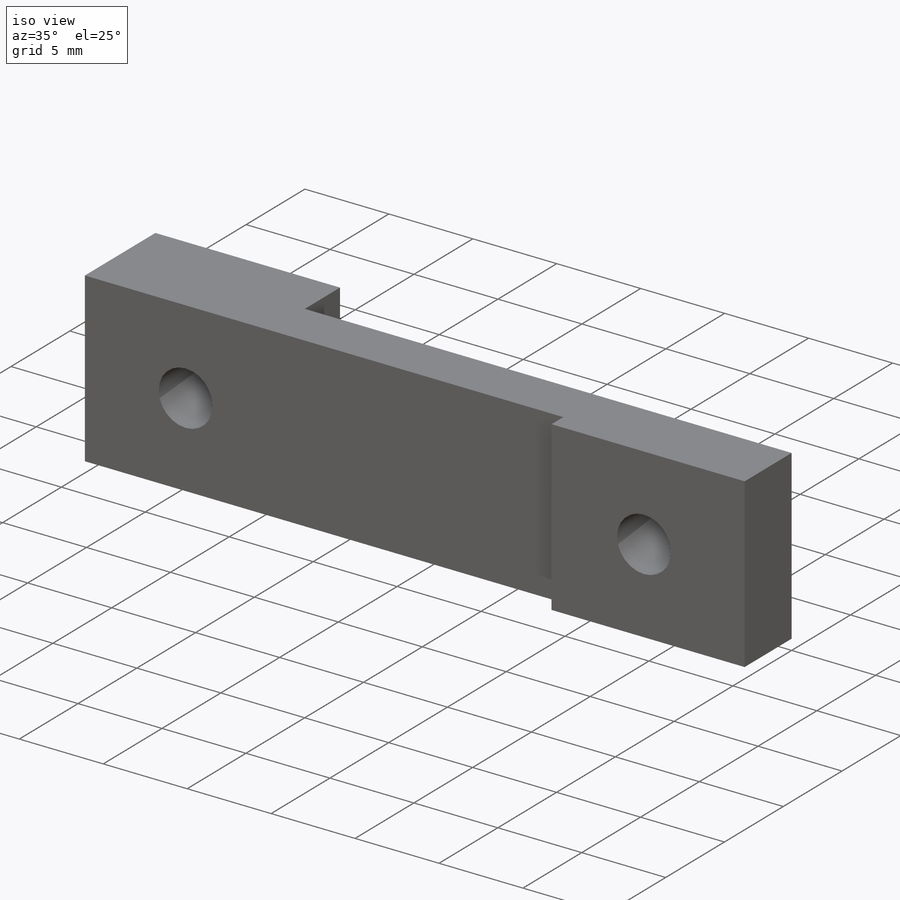
[diagram: iso view]
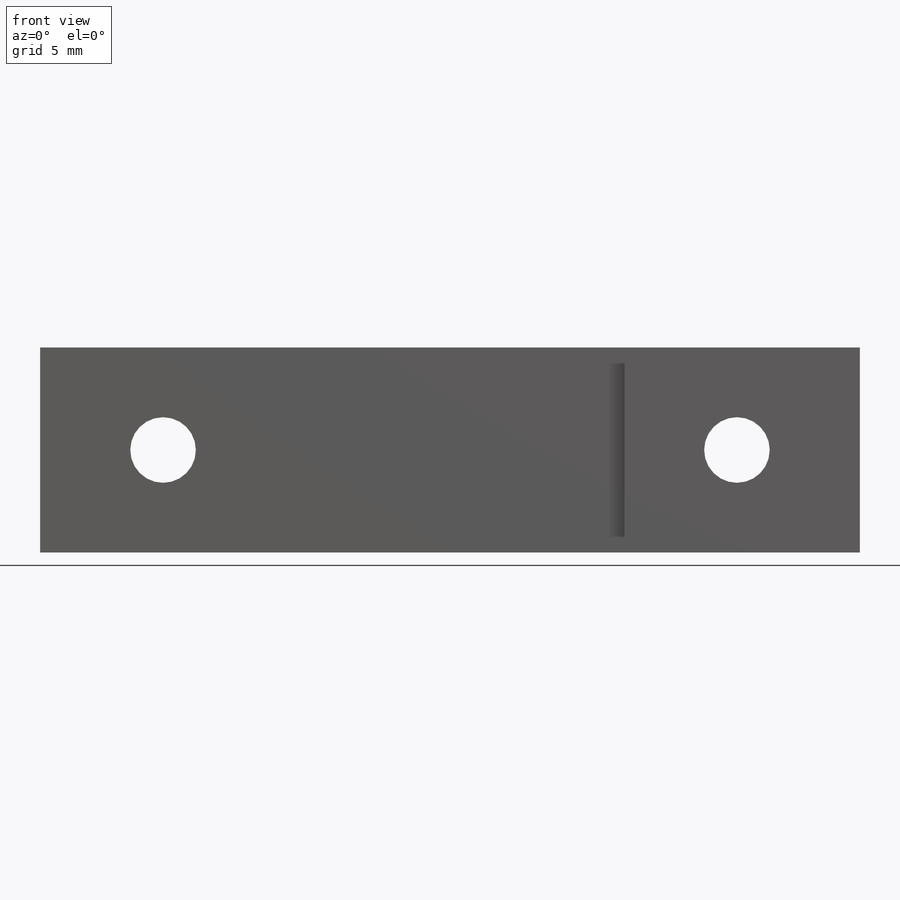
[diagram: front view]
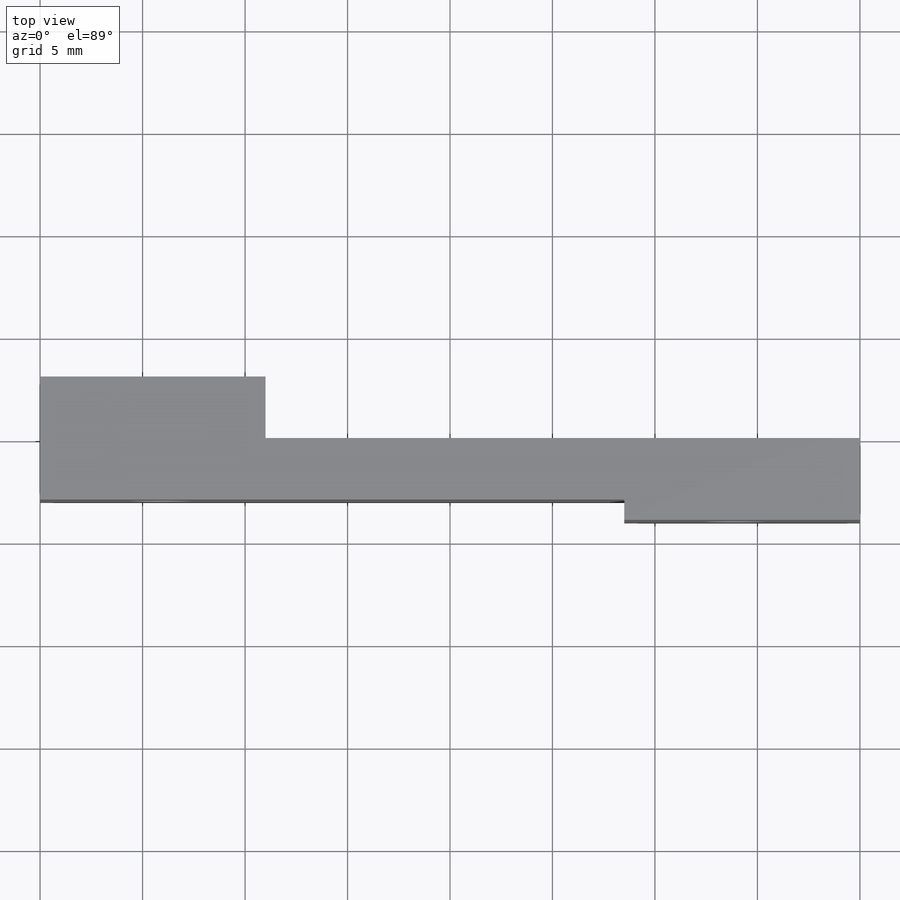
[diagram: top view]
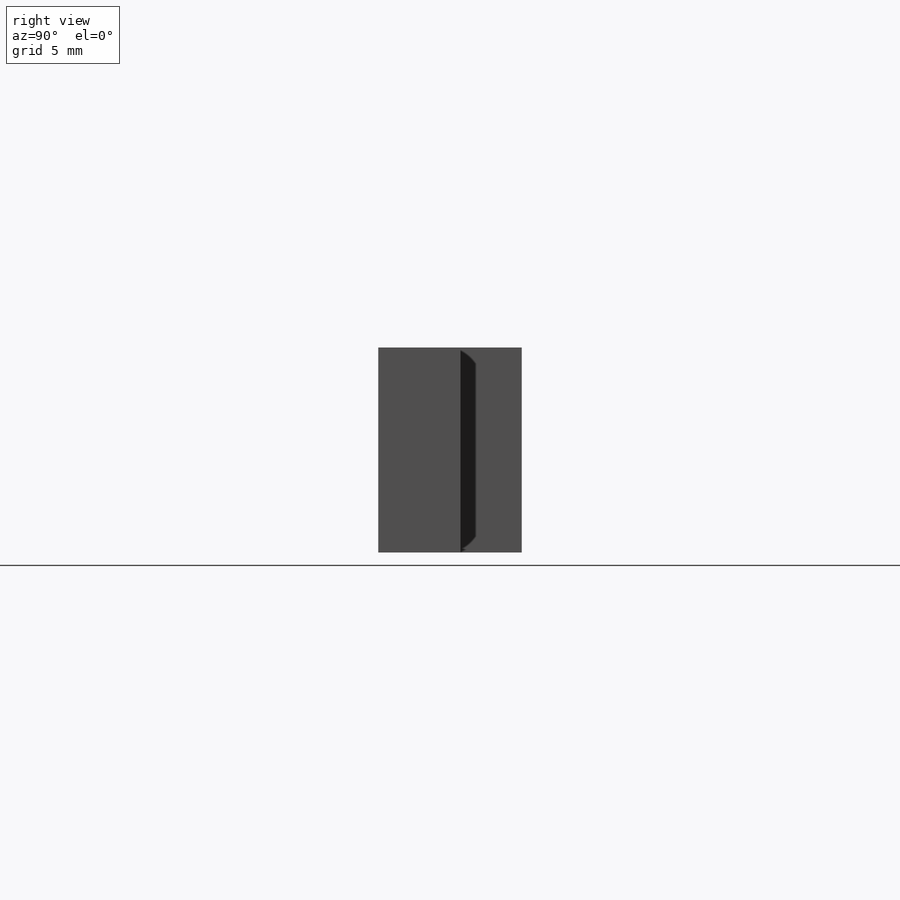
[diagram: right view]
SOLIDWORKS PART (.sldprt)
format: sldprt  version: not decoded by parser v0  size: 250,880 bytes
history: native  units: mm
features: sketch x11, extrude x7, cut_extrude x4, plane x3, material x1 (+10 scaffold rows collapsed)
feature tree (36):
  scaffold x10  (default folders/planes/origin — collapsed)
  material  "材質 <未指定>"
  plane  "前基準面"
  plane  "上基準面"
  plane  "右基準面"
  sketch  "草圖1"  dims[D1=35.0mm D2=10.0mm]
  extrude  "填料-伸長1"  Depth=3mm
  sketch  "草圖2"  dims[c1.D1=10.0mm c1.D2=9.0mm c1.D3=0.0mm c1.D4=13.0mm c2.D1=9.0mm]
  extrude  "填料-伸長2"  Depth=1mm
  sketch  "草圖3"  dims[D1=2.0mm D2=3.5mm]
  extrude  "填料-伸長3"  Depth=8mm
  sketch  "草圖4"  dims[D1=6.0mm]
  extrude  "填料-伸長4"  Depth=3mm
  sketch  "草圖5"  dims[D1=3.0mm D2=3.5mm]
  cut_extrude  "除料-伸長1"  Depth=6mm
  sketch  "草圖6"
  extrude  "填料-伸長5"  Depth=5mm
  sketch  "草圖7"  dims[D1=3.2mm]
  cut_extrude  "除料-伸長2"  Depth=4mm
  sketch  "草圖8"  dims[D1=4.0mm D2=10.0mm]
  extrude  "填料-伸長6"  Depth=2.5mm
  sketch  "草圖10"  dims[D1=3.2mm]
  cut_extrude  "除料-伸長3"  Depth=7mm
  sketch  "草圖11"
  extrude  "填料-伸長7"  Depth=2.5mm
  sketch  "草圖12"
  cut_extrude  "除料-伸長4"  Depth=2.5mm
decode coverage: 19 of 22 modeling features carry decoded parameters
note: suppression state not decoded; provenance and decode notes live in map.json
